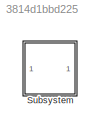
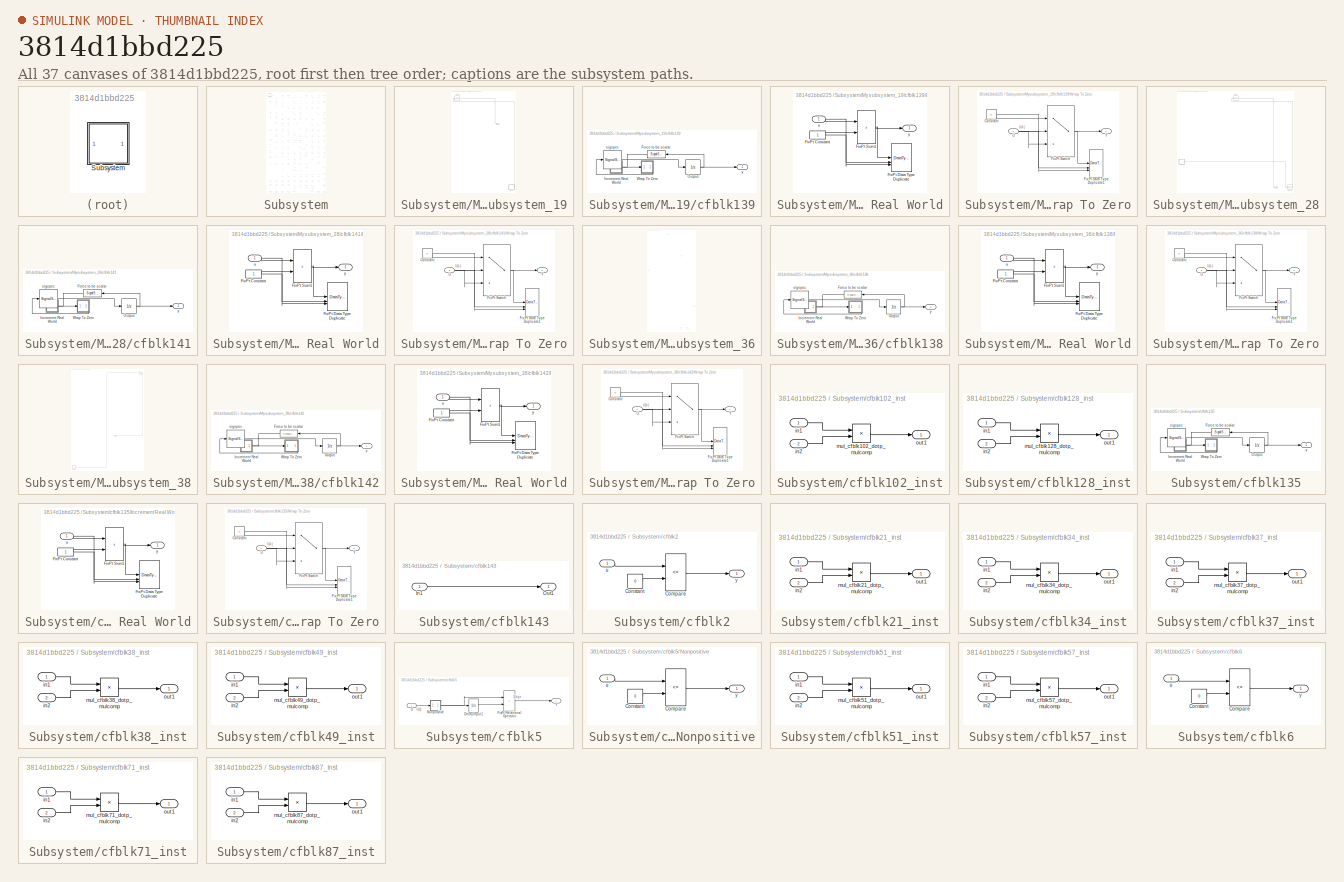
[diagram: thumbnail index - all 37 canvases of the model, root first then tree order]
MODEL slx_3814d1bbd225
KIND model
CONFIG AbsTol = auto
CONFIG EnableMultiTasking = off
CONFIG FixedStep = auto
CONFIG MaxStep = auto
CONFIG MinStep = auto
CONFIG RelTol = 1e-3
CONFIG SampleTimeConstraint = Unconstrained
CONFIG SolverName = VariableStepAuto
CONFIG StartTime = 0.0
CONFIG StopTime = 10.0
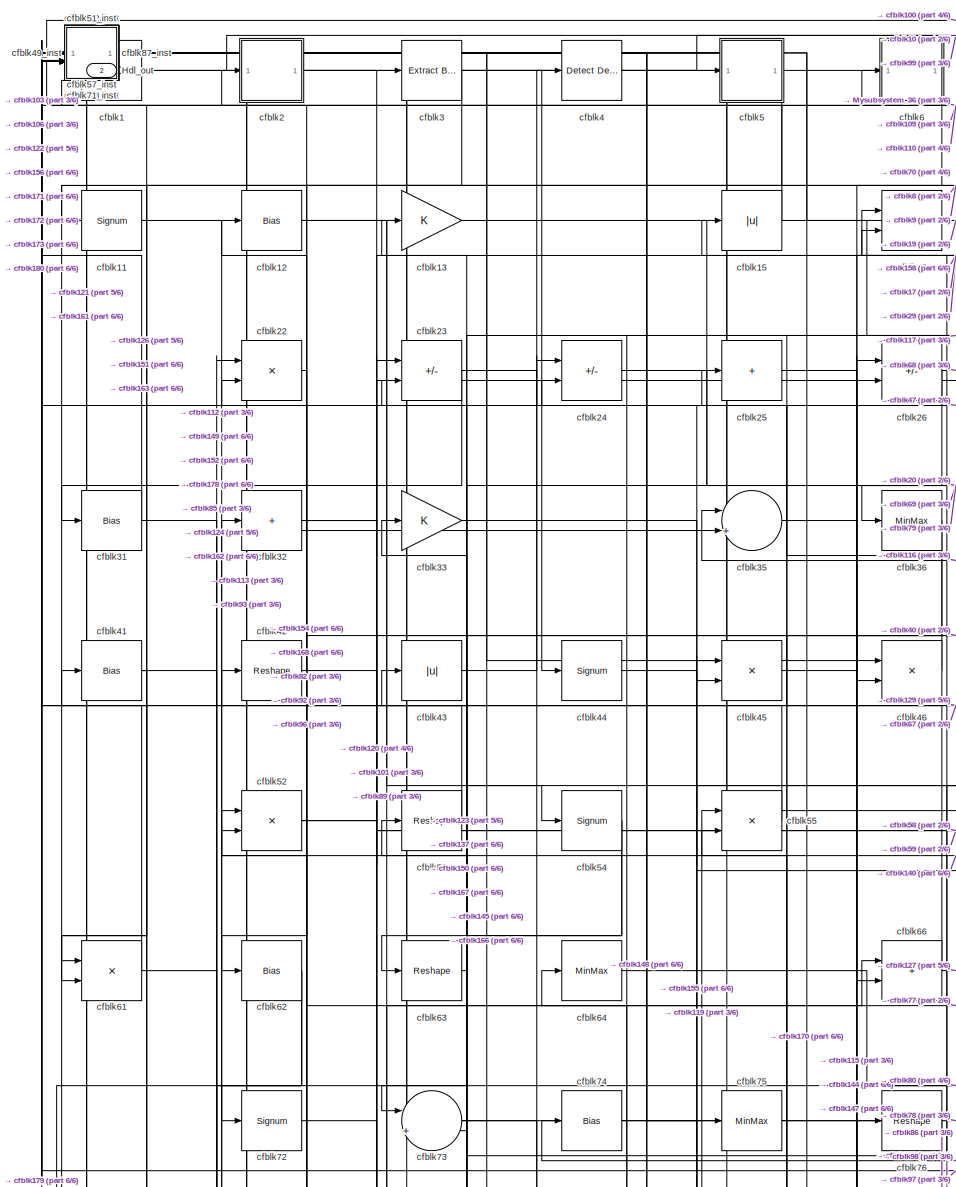
[diagram: Subsystem - part 1/6, top left region]
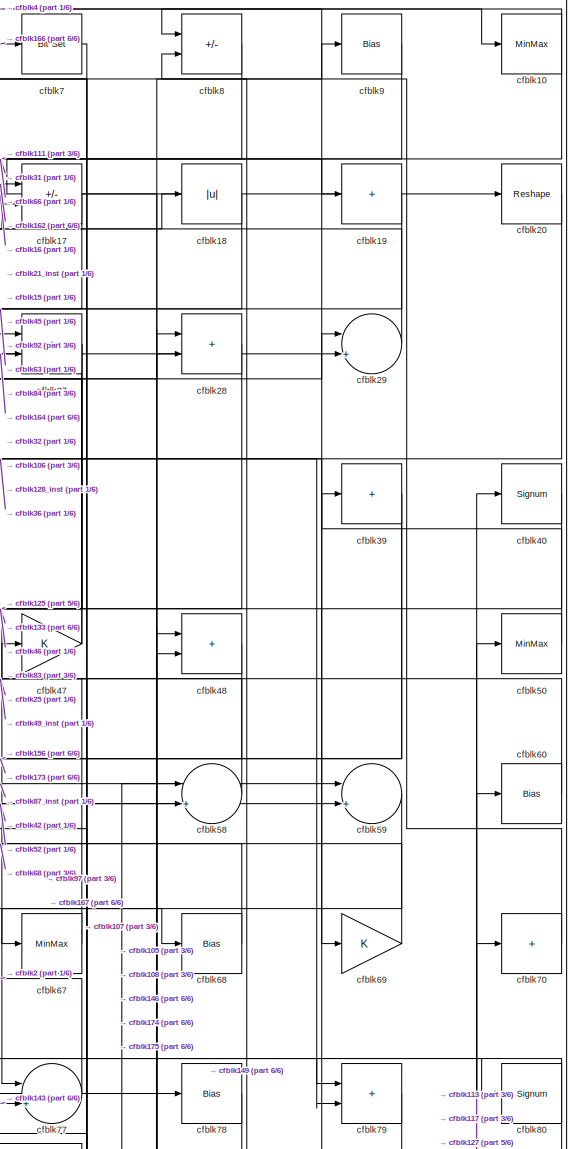
[diagram: Subsystem - part 2/6, top right region]
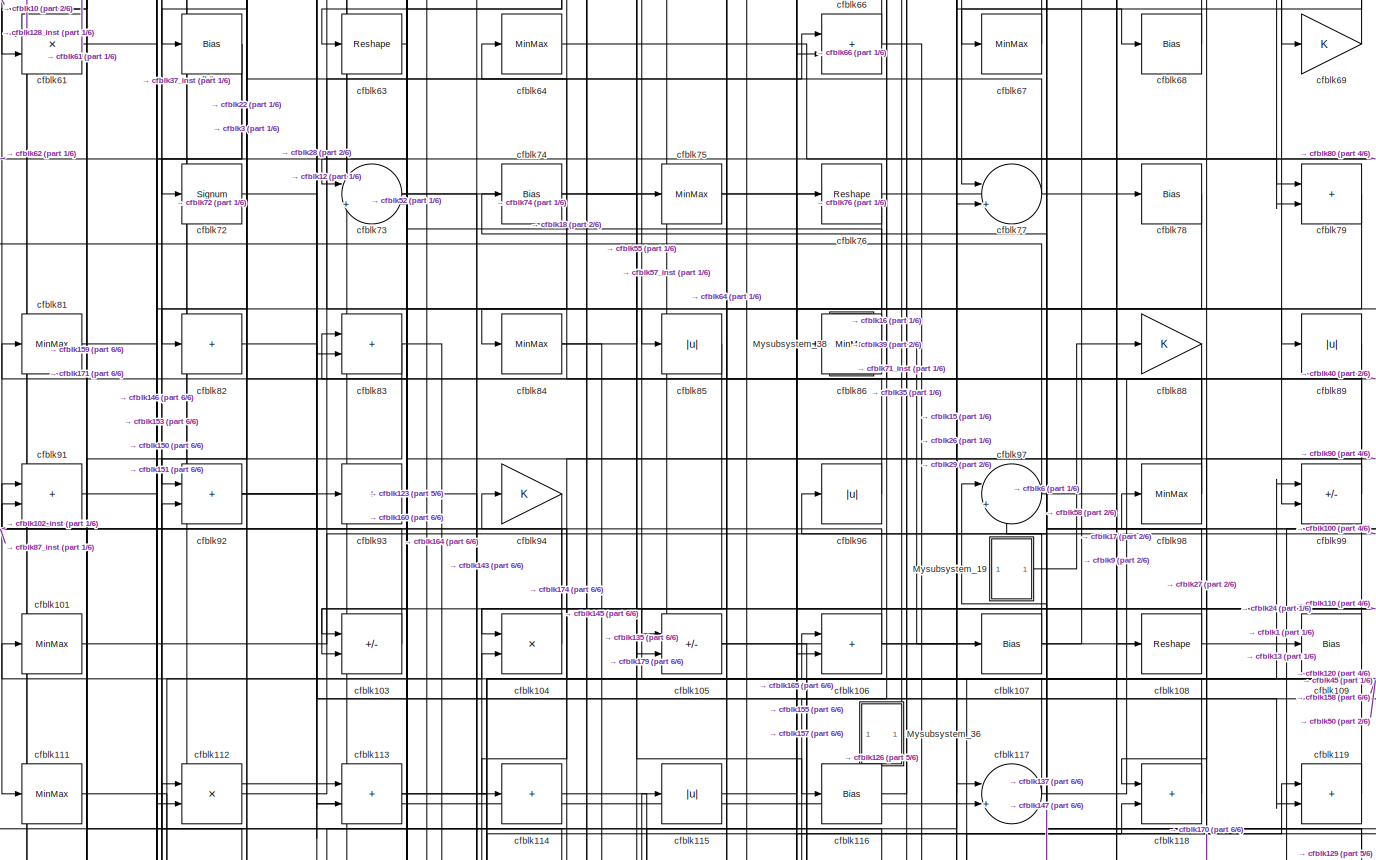
[diagram: Subsystem - part 3/6, full width, middle band]
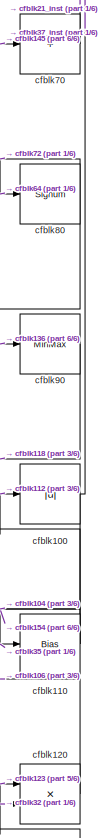
[diagram: Subsystem - part 4/6, middle right region]
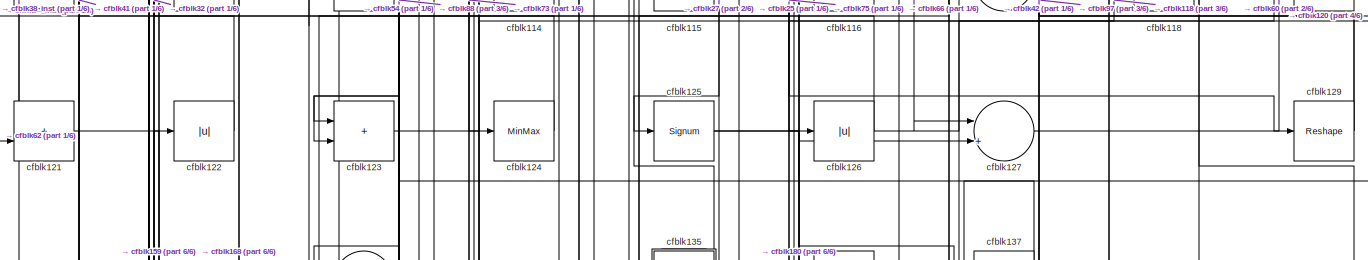
[diagram: Subsystem - part 5/6, full width, bottom band]
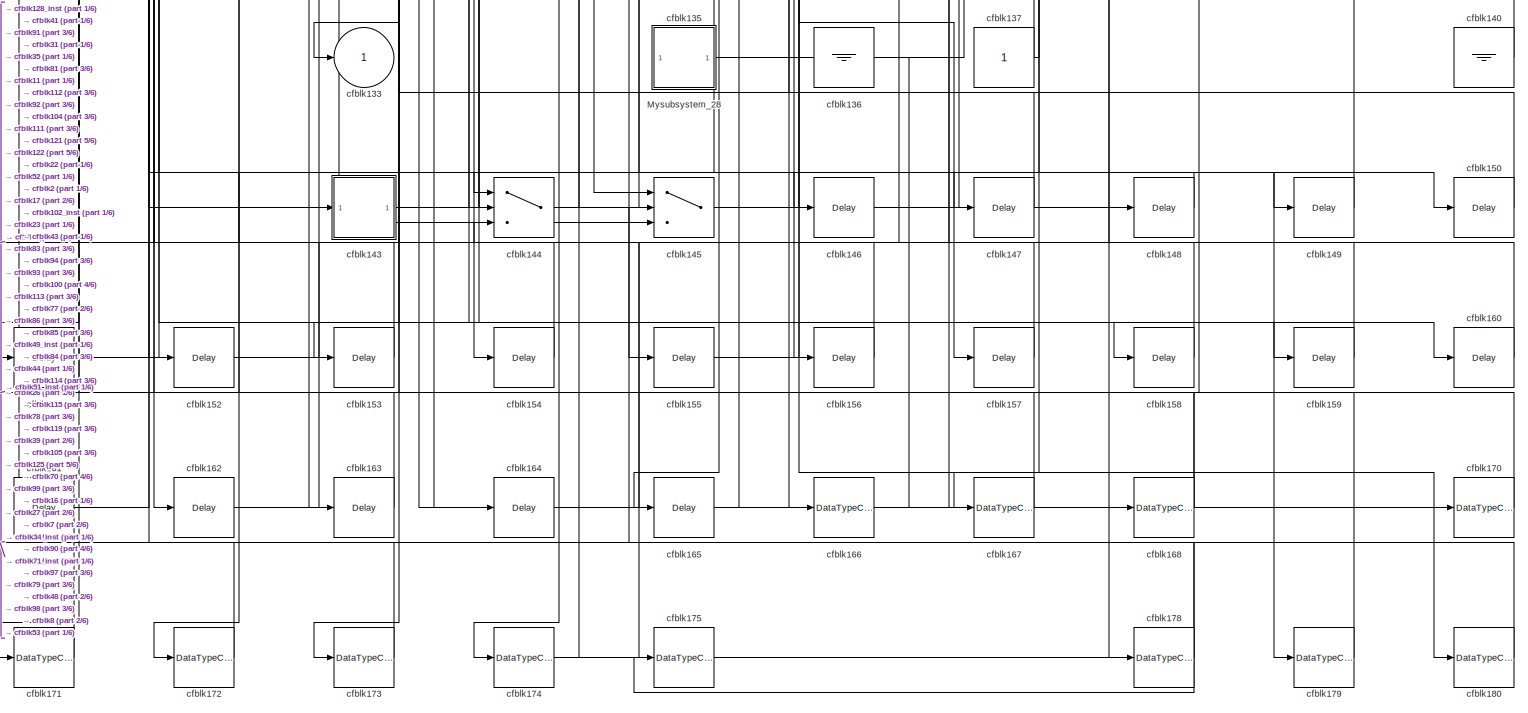
[diagram: Subsystem - part 6/6, full width, bottom band]
BLOCK [SubSystem] Subsystem
BLOCK [Outport] Subsystem/Hdl_out
  OutDataTypeStr = uint8
  Port = 2
  SampleTime = 1
BLOCK [SubSystem] Subsystem/Mysubsystem_19
BLOCK [Outport] Subsystem/Mysubsystem_19/Out1
  SampleTime = 1
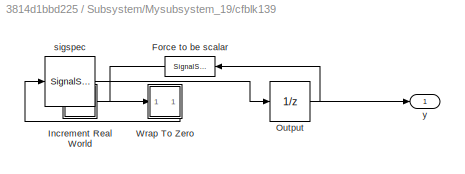
BLOCK [SubSystem] Subsystem/Mysubsystem_19/cfblk139
BLOCK [SignalSpecification] Subsystem/Mysubsystem_19/cfblk139/Force to be scalar
  Dimensions = 1
  DisableCoverage = on
BLOCK [SubSystem] Subsystem/Mysubsystem_19/cfblk139/Increment Real World
BLOCK [Constant] Subsystem/Mysubsystem_19/cfblk139/Increment Real World/FixPt Constant
  DisableCoverage = on
  OutDataTypeStr = Inherit: Inherit via back propagation
  SampleTime = -1
BLOCK [DataTypeDuplicate] Subsystem/Mysubsystem_19/cfblk139/Increment Real World/FixPt Data Type Duplicate
  DisableCoverage = on
  NumInputPorts = 3
BLOCK [Sum] Subsystem/Mysubsystem_19/cfblk139/Increment Real World/FixPt Sum1
  IconShape = rectangular
  InputSameDT = on
  LockScale = on
  OutDataTypeStr = Inherit: Inherit via back propagation
BLOCK [Inport] Subsystem/Mysubsystem_19/cfblk139/Increment Real World/u
  OutDataTypeStr = uint16
  SampleTime = 1
BLOCK [Outport] Subsystem/Mysubsystem_19/cfblk139/Increment Real World/y
  SampleTime = 1
BLOCK [UnitDelay] Subsystem/Mysubsystem_19/cfblk139/Output
  HasFrameUpgradeWarning = on
  InitialCondition = 0.0
  SampleTime = tsamp
BLOCK [SubSystem] Subsystem/Mysubsystem_19/cfblk139/Wrap To Zero
BLOCK [Constant] Subsystem/Mysubsystem_19/cfblk139/Wrap To Zero/Constant
  DisableCoverage = on
  OutDataTypeStr = Inherit: Inherit via back propagation
  SampleTime = -1
  Value = 0
BLOCK [DataTypeDuplicate] Subsystem/Mysubsystem_19/cfblk139/Wrap To Zero/FixPt Data Type Duplicate1
  DisableCoverage = on
  NumInputPorts = 3
BLOCK [Switch] Subsystem/Mysubsystem_19/cfblk139/Wrap To Zero/FixPt Switch
  Criteria = u2 > Threshold
  InputSameDT = off
  OutDataTypeStr = Inherit: Inherit via back propagation
  SaturateOnIntegerOverflow = off
  Threshold = Threshold
  ZeroCross = off
BLOCK [Inport] Subsystem/Mysubsystem_19/cfblk139/Wrap To Zero/U
  OutDataTypeStr = uint16
  SampleTime = 1
BLOCK [Outport] Subsystem/Mysubsystem_19/cfblk139/Wrap To Zero/Y
  SampleTime = 1
BLOCK [SignalSpecification] Subsystem/Mysubsystem_19/cfblk139/sigspec
  Dimensions = 1
  OutDataTypeStr = uint16
BLOCK [Outport] Subsystem/Mysubsystem_19/cfblk139/y
  SampleTime = 1
BLOCK [Signum] Subsystem/Mysubsystem_19/cfblk65
BLOCK [SubSystem] Subsystem/Mysubsystem_28
BLOCK [Outport] Subsystem/Mysubsystem_28/Out1
  SampleTime = 1
BLOCK [SubSystem] Subsystem/Mysubsystem_28/cfblk141
BLOCK [SignalSpecification] Subsystem/Mysubsystem_28/cfblk141/Force to be scalar
  Dimensions = 1
  DisableCoverage = on
BLOCK [SubSystem] Subsystem/Mysubsystem_28/cfblk141/Increment Real World
BLOCK [Constant] Subsystem/Mysubsystem_28/cfblk141/Increment Real World/FixPt Constant
  DisableCoverage = on
  OutDataTypeStr = Inherit: Inherit via back propagation
  SampleTime = -1
BLOCK [DataTypeDuplicate] Subsystem/Mysubsystem_28/cfblk141/Increment Real World/FixPt Data Type Duplicate
  DisableCoverage = on
  NumInputPorts = 3
BLOCK [Sum] Subsystem/Mysubsystem_28/cfblk141/Increment Real World/FixPt Sum1
  IconShape = rectangular
  InputSameDT = on
  LockScale = on
  OutDataTypeStr = Inherit: Inherit via back propagation
BLOCK [Inport] Subsystem/Mysubsystem_28/cfblk141/Increment Real World/u
  OutDataTypeStr = uint16
  SampleTime = 1
BLOCK [Outport] Subsystem/Mysubsystem_28/cfblk141/Increment Real World/y
  SampleTime = 1
BLOCK [UnitDelay] Subsystem/Mysubsystem_28/cfblk141/Output
  HasFrameUpgradeWarning = on
  InitialCondition = 0.0
  SampleTime = tsamp
BLOCK [SubSystem] Subsystem/Mysubsystem_28/cfblk141/Wrap To Zero
BLOCK [Constant] Subsystem/Mysubsystem_28/cfblk141/Wrap To Zero/Constant
  DisableCoverage = on
  OutDataTypeStr = Inherit: Inherit via back propagation
  SampleTime = -1
  Value = 0
BLOCK [DataTypeDuplicate] Subsystem/Mysubsystem_28/cfblk141/Wrap To Zero/FixPt Data Type Duplicate1
  DisableCoverage = on
  NumInputPorts = 3
BLOCK [Switch] Subsystem/Mysubsystem_28/cfblk141/Wrap To Zero/FixPt Switch
  Criteria = u2 > Threshold
  InputSameDT = off
  OutDataTypeStr = Inherit: Inherit via back propagation
  SaturateOnIntegerOverflow = off
  Threshold = Threshold
  ZeroCross = off
BLOCK [Inport] Subsystem/Mysubsystem_28/cfblk141/Wrap To Zero/U
  OutDataTypeStr = uint16
  SampleTime = 1
BLOCK [Outport] Subsystem/Mysubsystem_28/cfblk141/Wrap To Zero/Y
  SampleTime = 1
BLOCK [SignalSpecification] Subsystem/Mysubsystem_28/cfblk141/sigspec
  Dimensions = 1
  OutDataTypeStr = uint16
BLOCK [Outport] Subsystem/Mysubsystem_28/cfblk141/y
  SampleTime = 1
BLOCK [DataTypeConversion] Subsystem/Mysubsystem_28/cfblk169
  OutDataTypeStr = uint8
  RndMeth = Floor
  SaturateOnIntegerOverflow = off
BLOCK [Signum] Subsystem/Mysubsystem_28/cfblk95
BLOCK [SubSystem] Subsystem/Mysubsystem_36
BLOCK [Outport] Subsystem/Mysubsystem_36/Out1
  SampleTime = 1
BLOCK [SubSystem] Subsystem/Mysubsystem_36/cfblk138
BLOCK [SignalSpecification] Subsystem/Mysubsystem_36/cfblk138/Force to be scalar
  Dimensions = 1
  DisableCoverage = on
BLOCK [SubSystem] Subsystem/Mysubsystem_36/cfblk138/Increment Real World
BLOCK [Constant] Subsystem/Mysubsystem_36/cfblk138/Increment Real World/FixPt Constant
  DisableCoverage = on
  OutDataTypeStr = Inherit: Inherit via back propagation
  SampleTime = -1
BLOCK [DataTypeDuplicate] Subsystem/Mysubsystem_36/cfblk138/Increment Real World/FixPt Data Type Duplicate
  DisableCoverage = on
  NumInputPorts = 3
BLOCK [Sum] Subsystem/Mysubsystem_36/cfblk138/Increment Real World/FixPt Sum1
  IconShape = rectangular
  InputSameDT = on
  LockScale = on
  OutDataTypeStr = Inherit: Inherit via back propagation
BLOCK [Inport] Subsystem/Mysubsystem_36/cfblk138/Increment Real World/u
  OutDataTypeStr = uint8
  SampleTime = 1
BLOCK [Outport] Subsystem/Mysubsystem_36/cfblk138/Increment Real World/y
  SampleTime = 1
BLOCK [UnitDelay] Subsystem/Mysubsystem_36/cfblk138/Output
  HasFrameUpgradeWarning = on
  InitialCondition = 0.0
  SampleTime = tsamp
BLOCK [SubSystem] Subsystem/Mysubsystem_36/cfblk138/Wrap To Zero
BLOCK [Constant] Subsystem/Mysubsystem_36/cfblk138/Wrap To Zero/Constant
  DisableCoverage = on
  OutDataTypeStr = Inherit: Inherit via back propagation
  SampleTime = -1
  Value = 0
BLOCK [DataTypeDuplicate] Subsystem/Mysubsystem_36/cfblk138/Wrap To Zero/FixPt Data Type Duplicate1
  DisableCoverage = on
  NumInputPorts = 3
BLOCK [Switch] Subsystem/Mysubsystem_36/cfblk138/Wrap To Zero/FixPt Switch
  Criteria = u2 > Threshold
  InputSameDT = off
  OutDataTypeStr = Inherit: Inherit via back propagation
  SaturateOnIntegerOverflow = off
  Threshold = Threshold
  ZeroCross = off
BLOCK [Inport] Subsystem/Mysubsystem_36/cfblk138/Wrap To Zero/U
  OutDataTypeStr = uint8
  SampleTime = 1
BLOCK [Outport] Subsystem/Mysubsystem_36/cfblk138/Wrap To Zero/Y
  SampleTime = 1
BLOCK [SignalSpecification] Subsystem/Mysubsystem_36/cfblk138/sigspec
  Dimensions = 1
  OutDataTypeStr = uint8
BLOCK [Outport] Subsystem/Mysubsystem_36/cfblk138/y
  SampleTime = 1
BLOCK [Gain] Subsystem/Mysubsystem_36/cfblk14
BLOCK [DataTypeConversion] Subsystem/Mysubsystem_36/cfblk176
  OutDataTypeStr = uint8
  RndMeth = Floor
  SaturateOnIntegerOverflow = off
BLOCK [DataTypeConversion] Subsystem/Mysubsystem_36/cfblk177
  OutDataTypeStr = uint8
  RndMeth = Floor
  SaturateOnIntegerOverflow = off
BLOCK [Abs] Subsystem/Mysubsystem_36/cfblk56
  SaturateOnIntegerOverflow = off
BLOCK [SubSystem] Subsystem/Mysubsystem_38
BLOCK [Outport] Subsystem/Mysubsystem_38/Out1
  SampleTime = 1
BLOCK [SubSystem] Subsystem/Mysubsystem_38/cfblk142
BLOCK [SignalSpecification] Subsystem/Mysubsystem_38/cfblk142/Force to be scalar
  Dimensions = 1
  DisableCoverage = on
BLOCK [SubSystem] Subsystem/Mysubsystem_38/cfblk142/Increment Real World
BLOCK [Constant] Subsystem/Mysubsystem_38/cfblk142/Increment Real World/FixPt Constant
  DisableCoverage = on
  OutDataTypeStr = Inherit: Inherit via back propagation
  SampleTime = -1
BLOCK [DataTypeDuplicate] Subsystem/Mysubsystem_38/cfblk142/Increment Real World/FixPt Data Type Duplicate
  DisableCoverage = on
  NumInputPorts = 3
BLOCK [Sum] Subsystem/Mysubsystem_38/cfblk142/Increment Real World/FixPt Sum1
  IconShape = rectangular
  InputSameDT = on
  LockScale = on
  OutDataTypeStr = Inherit: Inherit via back propagation
BLOCK [Inport] Subsystem/Mysubsystem_38/cfblk142/Increment Real World/u
  OutDataTypeStr = uint8
  SampleTime = 1
BLOCK [Outport] Subsystem/Mysubsystem_38/cfblk142/Increment Real World/y
  SampleTime = 1
BLOCK [UnitDelay] Subsystem/Mysubsystem_38/cfblk142/Output
  HasFrameUpgradeWarning = on
  InitialCondition = 0.0
  SampleTime = tsamp
BLOCK [SubSystem] Subsystem/Mysubsystem_38/cfblk142/Wrap To Zero
BLOCK [Constant] Subsystem/Mysubsystem_38/cfblk142/Wrap To Zero/Constant
  DisableCoverage = on
  OutDataTypeStr = Inherit: Inherit via back propagation
  SampleTime = -1
  Value = 0
BLOCK [DataTypeDuplicate] Subsystem/Mysubsystem_38/cfblk142/Wrap To Zero/FixPt Data Type Duplicate1
  DisableCoverage = on
  NumInputPorts = 3
BLOCK [Switch] Subsystem/Mysubsystem_38/cfblk142/Wrap To Zero/FixPt Switch
  Criteria = u2 > Threshold
  InputSameDT = off
  OutDataTypeStr = Inherit: Inherit via back propagation
  SaturateOnIntegerOverflow = off
  Threshold = Threshold
  ZeroCross = off
BLOCK [Inport] Subsystem/Mysubsystem_38/cfblk142/Wrap To Zero/U
  OutDataTypeStr = uint8
  SampleTime = 1
BLOCK [Outport] Subsystem/Mysubsystem_38/cfblk142/Wrap To Zero/Y
  SampleTime = 1
BLOCK [SignalSpecification] Subsystem/Mysubsystem_38/cfblk142/sigspec
  Dimensions = 1
  OutDataTypeStr = uint8
BLOCK [Outport] Subsystem/Mysubsystem_38/cfblk142/y
  SampleTime = 1
BLOCK [Gain] Subsystem/Mysubsystem_38/cfblk30
BLOCK [Logic] Subsystem/cfblk1
  AllPortsSameDT = off
  OutDataTypeStr = boolean
BLOCK [MinMax] Subsystem/cfblk10
  OutDataTypeStr = uint8
BLOCK [Abs] Subsystem/cfblk100
  OutDataTypeStr = uint8
  SaturateOnIntegerOverflow = off
BLOCK [MinMax] Subsystem/cfblk101
  OutDataTypeStr = uint8
BLOCK [SubSystem] Subsystem/cfblk102_inst
BLOCK [Inport] Subsystem/cfblk102_inst/in1
  OutDataTypeStr = uint8
  SampleTime = 1
BLOCK [Inport] Subsystem/cfblk102_inst/in2
  OutDataTypeStr = uint8
  Port = 2
  SampleTime = 1
BLOCK [Product] Subsystem/cfblk102_inst/mul_cfblk102_dotp_mulcomp
  Inputs = **
  OutDataTypeStr = uint8
  SampleTime = 1
BLOCK [Outport] Subsystem/cfblk102_inst/out1
  OutDataTypeStr = uint8
  SampleTime = 1
BLOCK [Sum] Subsystem/cfblk103
  IconShape = rectangular
  Inputs = +-
  OutDataTypeStr = uint8
BLOCK [Product] Subsystem/cfblk104
  Inputs = */
  OutDataTypeStr = uint8
  RndMeth = Zero
  SaturateOnIntegerOverflow = on
BLOCK [Sum] Subsystem/cfblk105
  IconShape = rectangular
  Inputs = +-
  OutDataTypeStr = uint8
BLOCK [Sum] Subsystem/cfblk106
  IconShape = rectangular
  OutDataTypeStr = uint8
BLOCK [Bias] Subsystem/cfblk107
  Bias = 0.0
  SaturateOnIntegerOverflow = off
BLOCK [Reshape] Subsystem/cfblk108
BLOCK [Bias] Subsystem/cfblk109
  Bias = 0.0
  SaturateOnIntegerOverflow = off
BLOCK [Signum] Subsystem/cfblk11
BLOCK [Bias] Subsystem/cfblk110
  Bias = 0.0
  SaturateOnIntegerOverflow = off
BLOCK [MinMax] Subsystem/cfblk111
  OutDataTypeStr = uint8
BLOCK [Product] Subsystem/cfblk112
  Inputs = */
  OutDataTypeStr = uint8
  RndMeth = Zero
  SaturateOnIntegerOverflow = on
BLOCK [Sum] Subsystem/cfblk113
  IconShape = rectangular
  OutDataTypeStr = uint8
BLOCK [Sum] Subsystem/cfblk114
  IconShape = rectangular
  Inputs = +
  OutDataTypeStr = uint8
BLOCK [Abs] Subsystem/cfblk115
  OutDataTypeStr = uint8
  SaturateOnIntegerOverflow = off
BLOCK [Bias] Subsystem/cfblk116
  Bias = 0.0
  SaturateOnIntegerOverflow = off
BLOCK [Sum] Subsystem/cfblk117
  Inputs = |++
  OutDataTypeStr = uint8
BLOCK [Sum] Subsystem/cfblk118
  IconShape = rectangular
  OutDataTypeStr = uint8
BLOCK [Sum] Subsystem/cfblk119
  IconShape = rectangular
  OutDataTypeStr = uint8
BLOCK [Bias] Subsystem/cfblk12
  Bias = 0.0
  SaturateOnIntegerOverflow = off
BLOCK [Product] Subsystem/cfblk120
  Inputs = */
  OutDataTypeStr = uint8
  RndMeth = Zero
  SaturateOnIntegerOverflow = on
BLOCK [Sum] Subsystem/cfblk121
  IconShape = rectangular
  OutDataTypeStr = uint8
BLOCK [Abs] Subsystem/cfblk122
  OutDataTypeStr = uint8
  SaturateOnIntegerOverflow = off
BLOCK [Sum] Subsystem/cfblk123
  IconShape = rectangular
  OutDataTypeStr = uint8
BLOCK [MinMax] Subsystem/cfblk124
  OutDataTypeStr = uint8
BLOCK [Signum] Subsystem/cfblk125
BLOCK [Abs] Subsystem/cfblk126
  OutDataTypeStr = uint8
  SaturateOnIntegerOverflow = off
BLOCK [Sum] Subsystem/cfblk127
  Inputs = |++
  OutDataTypeStr = uint8
BLOCK [SubSystem] Subsystem/cfblk128_inst
BLOCK [Inport] Subsystem/cfblk128_inst/in1
  OutDataTypeStr = uint8
  SampleTime = 1
BLOCK [Inport] Subsystem/cfblk128_inst/in2
  OutDataTypeStr = uint8
  Port = 2
  SampleTime = 1
BLOCK [Product] Subsystem/cfblk128_inst/mul_cfblk128_dotp_mulcomp
  Inputs = **
  OutDataTypeStr = uint8
  SampleTime = 1
BLOCK [Outport] Subsystem/cfblk128_inst/out1
  OutDataTypeStr = uint8
  SampleTime = 1
BLOCK [Reshape] Subsystem/cfblk129
BLOCK [Gain] Subsystem/cfblk13
  OutDataTypeStr = uint8
BLOCK [Outport] Subsystem/cfblk133
  OutDataTypeStr = uint8
  SampleTime = 1
  VectorParamsAs1DForOutWhenUnconnected = off
BLOCK [SubSystem] Subsystem/cfblk135
BLOCK [SignalSpecification] Subsystem/cfblk135/Force to be scalar
  Dimensions = 1
  DisableCoverage = on
BLOCK [SubSystem] Subsystem/cfblk135/Increment Real World
BLOCK [Constant] Subsystem/cfblk135/Increment Real World/FixPt Constant
  DisableCoverage = on
  OutDataTypeStr = Inherit: Inherit via back propagation
  SampleTime = -1
BLOCK [DataTypeDuplicate] Subsystem/cfblk135/Increment Real World/FixPt Data Type Duplicate
  DisableCoverage = on
  NumInputPorts = 3
BLOCK [Sum] Subsystem/cfblk135/Increment Real World/FixPt Sum1
  IconShape = rectangular
  InputSameDT = on
  LockScale = on
  OutDataTypeStr = Inherit: Inherit via back propagation
BLOCK [Inport] Subsystem/cfblk135/Increment Real World/u
  OutDataTypeStr = uint16
  SampleTime = 1
BLOCK [Outport] Subsystem/cfblk135/Increment Real World/y
  SampleTime = 1
BLOCK [UnitDelay] Subsystem/cfblk135/Output
  HasFrameUpgradeWarning = on
  InitialCondition = 0.0
  SampleTime = tsamp
BLOCK [SubSystem] Subsystem/cfblk135/Wrap To Zero
BLOCK [Constant] Subsystem/cfblk135/Wrap To Zero/Constant
  DisableCoverage = on
  OutDataTypeStr = Inherit: Inherit via back propagation
  SampleTime = -1
  Value = 0
BLOCK [DataTypeDuplicate] Subsystem/cfblk135/Wrap To Zero/FixPt Data Type Duplicate1
  DisableCoverage = on
  NumInputPorts = 3
BLOCK [Switch] Subsystem/cfblk135/Wrap To Zero/FixPt Switch
  Criteria = u2 > Threshold
  InputSameDT = off
  OutDataTypeStr = Inherit: Inherit via back propagation
  SaturateOnIntegerOverflow = off
  Threshold = Threshold
  ZeroCross = off
BLOCK [Inport] Subsystem/cfblk135/Wrap To Zero/U
  OutDataTypeStr = uint16
  SampleTime = 1
BLOCK [Outport] Subsystem/cfblk135/Wrap To Zero/Y
  SampleTime = 1
BLOCK [SignalSpecification] Subsystem/cfblk135/sigspec
  Dimensions = 1
  OutDataTypeStr = uint16
BLOCK [Outport] Subsystem/cfblk135/y
  SampleTime = 1
BLOCK [Ground] Subsystem/cfblk136
BLOCK [Constant] Subsystem/cfblk137
  OutDataTypeStr = uint8
  SampleTime = -1
BLOCK [Ground] Subsystem/cfblk140
BLOCK [SubSystem] Subsystem/cfblk143
BLOCK [Inport] Subsystem/cfblk143/In1
  OutDataTypeStr = uint8
  PortDimensions = 1
  SampleTime = 1
BLOCK [Outport] Subsystem/cfblk143/Out1
  SampleTime = 1
BLOCK [Switch] Subsystem/cfblk144
  InputSameDT = off
  OutDataTypeStr = uint8
  SaturateOnIntegerOverflow = off
BLOCK [Switch] Subsystem/cfblk145
  InputSameDT = off
  OutDataTypeStr = uint8
  SaturateOnIntegerOverflow = off
BLOCK [Delay] Subsystem/cfblk146
  InputPortMap = u0
  SampleTime = 1
BLOCK [Delay] Subsystem/cfblk147
  InputPortMap = u0
  SampleTime = 1
BLOCK [Delay] Subsystem/cfblk148
  InputPortMap = u0
  SampleTime = 1
BLOCK [Delay] Subsystem/cfblk149
  InputPortMap = u0
  SampleTime = 1
BLOCK [Abs] Subsystem/cfblk15
  OutDataTypeStr = uint8
  SaturateOnIntegerOverflow = off
BLOCK [Delay] Subsystem/cfblk150
  InputPortMap = u0
  SampleTime = 1
BLOCK [Delay] Subsystem/cfblk151
  InputPortMap = u0
  SampleTime = 1
BLOCK [Delay] Subsystem/cfblk152
  InputPortMap = u0
  SampleTime = 1
BLOCK [Delay] Subsystem/cfblk153
  InputPortMap = u0
  SampleTime = 1
BLOCK [Delay] Subsystem/cfblk154
  InputPortMap = u0
  SampleTime = 1
BLOCK [Delay] Subsystem/cfblk155
  InputPortMap = u0
  SampleTime = 1
BLOCK [Delay] Subsystem/cfblk156
  InputPortMap = u0
  SampleTime = 1
BLOCK [Delay] Subsystem/cfblk157
  InputPortMap = u0
  SampleTime = 1
BLOCK [Delay] Subsystem/cfblk158
  InputPortMap = u0
  SampleTime = 1
BLOCK [Delay] Subsystem/cfblk159
  InputPortMap = u0
  SampleTime = 1
BLOCK [Product] Subsystem/cfblk16
  Inputs = */
  OutDataTypeStr = uint8
  RndMeth = Zero
  SaturateOnIntegerOverflow = on
BLOCK [Delay] Subsystem/cfblk160
  InputPortMap = u0
  SampleTime = 1
BLOCK [Delay] Subsystem/cfblk161
  InputPortMap = u0
  SampleTime = 1
BLOCK [Delay] Subsystem/cfblk162
  InputPortMap = u0
  SampleTime = 1
BLOCK [Delay] Subsystem/cfblk163
  InputPortMap = u0
  SampleTime = 1
BLOCK [Delay] Subsystem/cfblk164
  InputPortMap = u0
  SampleTime = 1
BLOCK [Delay] Subsystem/cfblk165
  InputPortMap = u0
  SampleTime = 1
BLOCK [DataTypeConversion] Subsystem/cfblk166
  OutDataTypeStr = uint8
  RndMeth = Floor
  SaturateOnIntegerOverflow = off
BLOCK [DataTypeConversion] Subsystem/cfblk167
  OutDataTypeStr = uint8
  RndMeth = Floor
  SaturateOnIntegerOverflow = off
BLOCK [DataTypeConversion] Subsystem/cfblk168
  OutDataTypeStr = uint8
  RndMeth = Floor
  SaturateOnIntegerOverflow = off
BLOCK [Sum] Subsystem/cfblk17
  IconShape = rectangular
  Inputs = +-
  OutDataTypeStr = uint8
BLOCK [DataTypeConversion] Subsystem/cfblk170
  OutDataTypeStr = uint8
  RndMeth = Floor
  SaturateOnIntegerOverflow = off
BLOCK [DataTypeConversion] Subsystem/cfblk171
  OutDataTypeStr = uint8
  RndMeth = Floor
  SaturateOnIntegerOverflow = off
BLOCK [DataTypeConversion] Subsystem/cfblk172
  OutDataTypeStr = uint8
  RndMeth = Floor
  SaturateOnIntegerOverflow = off
BLOCK [DataTypeConversion] Subsystem/cfblk173
  OutDataTypeStr = uint8
  RndMeth = Floor
  SaturateOnIntegerOverflow = off
BLOCK [DataTypeConversion] Subsystem/cfblk174
  OutDataTypeStr = uint8
  RndMeth = Floor
  SaturateOnIntegerOverflow = off
BLOCK [DataTypeConversion] Subsystem/cfblk175
  OutDataTypeStr = uint8
  RndMeth = Floor
  SaturateOnIntegerOverflow = off
BLOCK [DataTypeConversion] Subsystem/cfblk178
  OutDataTypeStr = uint8
  RndMeth = Floor
  SaturateOnIntegerOverflow = off
BLOCK [DataTypeConversion] Subsystem/cfblk179
  OutDataTypeStr = uint8
  RndMeth = Floor
  SaturateOnIntegerOverflow = off
BLOCK [Abs] Subsystem/cfblk18
  OutDataTypeStr = uint8
  SaturateOnIntegerOverflow = off
BLOCK [DataTypeConversion] Subsystem/cfblk180
  OutDataTypeStr = uint8
  RndMeth = Floor
  SaturateOnIntegerOverflow = off
BLOCK [Sum] Subsystem/cfblk19
  IconShape = rectangular
  Inputs = +
  OutDataTypeStr = uint8
BLOCK [SubSystem] Subsystem/cfblk2
BLOCK [RelationalOperator] Subsystem/cfblk2/Compare
  Operator = <=
  OutDataTypeStr = fixdt(0, 8)
BLOCK [Constant] Subsystem/cfblk2/Constant
  DisableCoverage = on
  OutDataTypeStr = Inherit: Inherit via back propagation
  PreserveConstantTs = on
  SampleTime = -1
  Value = 0
BLOCK [Inport] Subsystem/cfblk2/u
  OutDataTypeStr = uint8
  SampleTime = 1
BLOCK [Outport] Subsystem/cfblk2/y
  SampleTime = 1
BLOCK [Reshape] Subsystem/cfblk20
BLOCK [SubSystem] Subsystem/cfblk21_inst
BLOCK [Inport] Subsystem/cfblk21_inst/in1
  OutDataTypeStr = uint8
  SampleTime = 1
BLOCK [Inport] Subsystem/cfblk21_inst/in2
  OutDataTypeStr = uint8
  Port = 2
  SampleTime = 1
BLOCK [Product] Subsystem/cfblk21_inst/mul_cfblk21_dotp_mulcomp
  Inputs = **
  OutDataTypeStr = uint8
  SampleTime = 1
BLOCK [Outport] Subsystem/cfblk21_inst/out1
  OutDataTypeStr = uint8
  SampleTime = 1
BLOCK [Product] Subsystem/cfblk22
  Inputs = */
  OutDataTypeStr = uint8
  RndMeth = Zero
  SaturateOnIntegerOverflow = on
BLOCK [Sum] Subsystem/cfblk23
  IconShape = rectangular
  Inputs = +-
  OutDataTypeStr = uint8
BLOCK [Sum] Subsystem/cfblk24
  IconShape = rectangular
  Inputs = +-
  OutDataTypeStr = uint8
BLOCK [Sum] Subsystem/cfblk25
  IconShape = rectangular
  Inputs = +
  OutDataTypeStr = uint8
BLOCK [Sum] Subsystem/cfblk26
  IconShape = rectangular
  Inputs = +-
  OutDataTypeStr = uint8
BLOCK [Sum] Subsystem/cfblk27
  IconShape = rectangular
  OutDataTypeStr = uint8
BLOCK [Sum] Subsystem/cfblk28
  IconShape = rectangular
  OutDataTypeStr = uint8
BLOCK [Sum] Subsystem/cfblk29
  Inputs = |++
  OutDataTypeStr = uint8
BLOCK [Reference] Subsystem/cfblk3  REF=simulink/Logic and Bit
Operations/Extract Bits
  LibrarySourceBlock = hdlsllib/Logic and Bit\nOperations/Extract Bits
  SourceBlock = simulink/Logic and Bit\nOperations/Extract Bits
  SourceType = Extract Bits
BLOCK [Bias] Subsystem/cfblk31
  Bias = 0.0
  SaturateOnIntegerOverflow = off
BLOCK [Sum] Subsystem/cfblk32
  IconShape = rectangular
  Inputs = +
  OutDataTypeStr = uint8
BLOCK [Gain] Subsystem/cfblk33
  OutDataTypeStr = uint8
BLOCK [SubSystem] Subsystem/cfblk34_inst
BLOCK [Inport] Subsystem/cfblk34_inst/in1
  OutDataTypeStr = uint8
  SampleTime = 1
BLOCK [Inport] Subsystem/cfblk34_inst/in2
  OutDataTypeStr = uint8
  Port = 2
  SampleTime = 1
BLOCK [Product] Subsystem/cfblk34_inst/mul_cfblk34_dotp_mulcomp
  Inputs = **
  OutDataTypeStr = uint8
  SampleTime = 1
BLOCK [Outport] Subsystem/cfblk34_inst/out1
  OutDataTypeStr = uint8
  SampleTime = 1
BLOCK [Sum] Subsystem/cfblk35
  Inputs = |++
  OutDataTypeStr = uint8
BLOCK [MinMax] Subsystem/cfblk36
  OutDataTypeStr = uint8
BLOCK [SubSystem] Subsystem/cfblk37_inst
BLOCK [Inport] Subsystem/cfblk37_inst/in1
  OutDataTypeStr = uint8
  SampleTime = 1
BLOCK [Inport] Subsystem/cfblk37_inst/in2
  OutDataTypeStr = uint8
  Port = 2
  SampleTime = 1
BLOCK [Product] Subsystem/cfblk37_inst/mul_cfblk37_dotp_mulcomp
  Inputs = **
  OutDataTypeStr = uint8
  SampleTime = 1
BLOCK [Outport] Subsystem/cfblk37_inst/out1
  OutDataTypeStr = uint8
  SampleTime = 1
BLOCK [SubSystem] Subsystem/cfblk38_inst
BLOCK [Inport] Subsystem/cfblk38_inst/in1
  OutDataTypeStr = uint8
  SampleTime = 1
BLOCK [Inport] Subsystem/cfblk38_inst/in2
  OutDataTypeStr = uint8
  Port = 2
  SampleTime = 1
BLOCK [Product] Subsystem/cfblk38_inst/mul_cfblk38_dotp_mulcomp
  Inputs = **
  OutDataTypeStr = uint8
  SampleTime = 1
BLOCK [Outport] Subsystem/cfblk38_inst/out1
  OutDataTypeStr = uint8
  SampleTime = 1
BLOCK [Sum] Subsystem/cfblk39
  IconShape = rectangular
  Inputs = +
  OutDataTypeStr = uint8
BLOCK [Reference] Subsystem/cfblk4  REF=simulink/Logic and Bit
Operations/Detect
Decrease
  LibrarySourceBlock = hdlsllib/Logic and Bit\nOperations/Detect\nDecrease
  SourceBlock = simulink/Logic and Bit\nOperations/Detect\nDecrease
  SourceType = Detect Decrease
BLOCK [Signum] Subsystem/cfblk40
BLOCK [Bias] Subsystem/cfblk41
  Bias = 0.0
  SaturateOnIntegerOverflow = off
BLOCK [Reshape] Subsystem/cfblk42
BLOCK [Abs] Subsystem/cfblk43
  OutDataTypeStr = uint8
  SaturateOnIntegerOverflow = off
BLOCK [Signum] Subsystem/cfblk44
BLOCK [Product] Subsystem/cfblk45
  Inputs = */
  OutDataTypeStr = uint8
  RndMeth = Zero
  SaturateOnIntegerOverflow = on
BLOCK [Product] Subsystem/cfblk46
  Inputs = */
  OutDataTypeStr = uint8
  RndMeth = Zero
  SaturateOnIntegerOverflow = on
BLOCK [Gain] Subsystem/cfblk47
  OutDataTypeStr = uint8
BLOCK [Sum] Subsystem/cfblk48
  IconShape = rectangular
  OutDataTypeStr = uint8
BLOCK [SubSystem] Subsystem/cfblk49_inst
BLOCK [Inport] Subsystem/cfblk49_inst/in1
  OutDataTypeStr = uint8
  SampleTime = 1
BLOCK [Inport] Subsystem/cfblk49_inst/in2
  OutDataTypeStr = uint8
  Port = 2
  SampleTime = 1
BLOCK [Product] Subsystem/cfblk49_inst/mul_cfblk49_dotp_mulcomp
  Inputs = **
  OutDataTypeStr = uint8
  SampleTime = 1
BLOCK [Outport] Subsystem/cfblk49_inst/out1
  OutDataTypeStr = uint8
  SampleTime = 1
BLOCK [SubSystem] Subsystem/cfblk5
BLOCK [UnitDelay] Subsystem/cfblk5/Delay Input1
  Description = Store in Global RAM
  DisableCoverage = on
  HasFrameUpgradeWarning = on
  InitialCondition = vinit
  SampleTime = -1
BLOCK [RelationalOperator] Subsystem/cfblk5/FixPt Relational Operator
  InputSameDT = off
  Operator = >
  OutDataTypeStr = fixdt(0, 8)
  ZeroCross = off
BLOCK [SubSystem] Subsystem/cfblk5/Nonpositive
BLOCK [RelationalOperator] Subsystem/cfblk5/Nonpositive/Compare
  Operator = <=
  OutDataTypeStr = boolean
  ZeroCross = off
BLOCK [Constant] Subsystem/cfblk5/Nonpositive/Constant
  DisableCoverage = on
  OutDataTypeStr = Inherit: Inherit via back propagation
  PreserveConstantTs = on
  SampleTime = -1
  Value = 0
BLOCK [Inport] Subsystem/cfblk5/Nonpositive/u
  OutDataTypeStr = uint8
  SampleTime = 1
BLOCK [Outport] Subsystem/cfblk5/Nonpositive/y
  SampleTime = 1
BLOCK [Inport] Subsystem/cfblk5/U
  OutDataTypeStr = uint8
  SampleTime = 1
BLOCK [Outport] Subsystem/cfblk5/Y
  SampleTime = 1
BLOCK [MinMax] Subsystem/cfblk50
  OutDataTypeStr = uint8
BLOCK [SubSystem] Subsystem/cfblk51_inst
BLOCK [Inport] Subsystem/cfblk51_inst/in1
  OutDataTypeStr = uint8
  SampleTime = 1
BLOCK [Inport] Subsystem/cfblk51_inst/in2
  OutDataTypeStr = uint8
  Port = 2
  SampleTime = 1
BLOCK [Product] Subsystem/cfblk51_inst/mul_cfblk51_dotp_mulcomp
  Inputs = **
  OutDataTypeStr = uint8
  SampleTime = 1
BLOCK [Outport] Subsystem/cfblk51_inst/out1
  OutDataTypeStr = uint8
  SampleTime = 1
BLOCK [Product] Subsystem/cfblk52
  Inputs = */
  OutDataTypeStr = uint8
  RndMeth = Zero
  SaturateOnIntegerOverflow = on
BLOCK [Reshape] Subsystem/cfblk53
BLOCK [Signum] Subsystem/cfblk54
BLOCK [Product] Subsystem/cfblk55
  Inputs = */
  OutDataTypeStr = uint8
  RndMeth = Zero
  SaturateOnIntegerOverflow = on
BLOCK [SubSystem] Subsystem/cfblk57_inst
BLOCK [Inport] Subsystem/cfblk57_inst/in1
  OutDataTypeStr = uint8
  SampleTime = 1
BLOCK [Inport] Subsystem/cfblk57_inst/in2
  OutDataTypeStr = uint8
  Port = 2
  SampleTime = 1
BLOCK [Product] Subsystem/cfblk57_inst/mul_cfblk57_dotp_mulcomp
  Inputs = **
  OutDataTypeStr = uint8
  SampleTime = 1
BLOCK [Outport] Subsystem/cfblk57_inst/out1
  OutDataTypeStr = uint8
  SampleTime = 1
BLOCK [Sum] Subsystem/cfblk58
  Inputs = |++
  OutDataTypeStr = uint8
BLOCK [Sum] Subsystem/cfblk59
  Inputs = |++
  OutDataTypeStr = uint8
BLOCK [SubSystem] Subsystem/cfblk6
BLOCK [RelationalOperator] Subsystem/cfblk6/Compare
  Operator = <=
  OutDataTypeStr = fixdt(0, 8)
BLOCK [Constant] Subsystem/cfblk6/Constant
  DisableCoverage = on
  OutDataTypeStr = Inherit: Inherit via back propagation
  PreserveConstantTs = on
  SampleTime = -1
  Value = 0
BLOCK [Inport] Subsystem/cfblk6/u
  OutDataTypeStr = uint8
  SampleTime = 1
BLOCK [Outport] Subsystem/cfblk6/y
  SampleTime = 1
BLOCK [Bias] Subsystem/cfblk60
  Bias = 0.0
  SaturateOnIntegerOverflow = off
BLOCK [Product] Subsystem/cfblk61
  Inputs = */
  OutDataTypeStr = uint8
  RndMeth = Zero
  SaturateOnIntegerOverflow = on
BLOCK [Bias] Subsystem/cfblk62
  Bias = 0.0
  SaturateOnIntegerOverflow = off
BLOCK [Reshape] Subsystem/cfblk63
BLOCK [MinMax] Subsystem/cfblk64
  OutDataTypeStr = uint8
BLOCK [Sum] Subsystem/cfblk66
  IconShape = rectangular
  OutDataTypeStr = uint8
BLOCK [MinMax] Subsystem/cfblk67
  OutDataTypeStr = uint8
BLOCK [Bias] Subsystem/cfblk68
  Bias = 0.0
  SaturateOnIntegerOverflow = off
BLOCK [Gain] Subsystem/cfblk69
  OutDataTypeStr = uint8
BLOCK [Reference] Subsystem/cfblk7  REF=simulink/Logic and Bit
Operations/Bit Set
  LibrarySourceBlock = hdlsllib/Logic and Bit\nOperations/Bit Set
  SourceBlock = simulink/Logic and Bit\nOperations/Bit Set
  SourceType = Bit Set
BLOCK [Sum] Subsystem/cfblk70
  IconShape = rectangular
  Inputs = +
  OutDataTypeStr = uint8
BLOCK [SubSystem] Subsystem/cfblk71_inst
BLOCK [Inport] Subsystem/cfblk71_inst/in1
  OutDataTypeStr = uint8
  SampleTime = 1
BLOCK [Inport] Subsystem/cfblk71_inst/in2
  OutDataTypeStr = uint8
  Port = 2
  SampleTime = 1
BLOCK [Product] Subsystem/cfblk71_inst/mul_cfblk71_dotp_mulcomp
  Inputs = **
  OutDataTypeStr = uint8
  SampleTime = 1
BLOCK [Outport] Subsystem/cfblk71_inst/out1
  OutDataTypeStr = uint8
  SampleTime = 1
BLOCK [Signum] Subsystem/cfblk72
BLOCK [Sum] Subsystem/cfblk73
  Inputs = |++
  OutDataTypeStr = uint8
BLOCK [Bias] Subsystem/cfblk74
  Bias = 0.0
  SaturateOnIntegerOverflow = off
BLOCK [MinMax] Subsystem/cfblk75
  OutDataTypeStr = uint8
BLOCK [Reshape] Subsystem/cfblk76
BLOCK [Sum] Subsystem/cfblk77
  Inputs = |++
  OutDataTypeStr = uint8
BLOCK [Bias] Subsystem/cfblk78
  Bias = 0.0
  SaturateOnIntegerOverflow = off
BLOCK [Sum] Subsystem/cfblk79
  IconShape = rectangular
  OutDataTypeStr = uint8
BLOCK [Sum] Subsystem/cfblk8
  IconShape = rectangular
  Inputs = +-
  OutDataTypeStr = uint8
BLOCK [Signum] Subsystem/cfblk80
BLOCK [MinMax] Subsystem/cfblk81
  OutDataTypeStr = uint8
BLOCK [Sum] Subsystem/cfblk82
  IconShape = rectangular
  Inputs = +
  OutDataTypeStr = uint8
BLOCK [Sum] Subsystem/cfblk83
  IconShape = rectangular
  OutDataTypeStr = uint8
BLOCK [MinMax] Subsystem/cfblk84
  OutDataTypeStr = uint8
BLOCK [Abs] Subsystem/cfblk85
  OutDataTypeStr = uint8
  SaturateOnIntegerOverflow = off
BLOCK [MinMax] Subsystem/cfblk86
  OutDataTypeStr = uint8
BLOCK [SubSystem] Subsystem/cfblk87_inst
BLOCK [Inport] Subsystem/cfblk87_inst/in1
  OutDataTypeStr = uint8
  SampleTime = 1
BLOCK [Inport] Subsystem/cfblk87_inst/in2
  OutDataTypeStr = uint8
  Port = 2
  SampleTime = 1
BLOCK [Product] Subsystem/cfblk87_inst/mul_cfblk87_dotp_mulcomp
  Inputs = **
  OutDataTypeStr = uint8
  SampleTime = 1
BLOCK [Outport] Subsystem/cfblk87_inst/out1
  OutDataTypeStr = uint8
  SampleTime = 1
BLOCK [Gain] Subsystem/cfblk88
  OutDataTypeStr = uint8
BLOCK [Abs] Subsystem/cfblk89
  OutDataTypeStr = uint8
  SaturateOnIntegerOverflow = off
BLOCK [Bias] Subsystem/cfblk9
  Bias = 0.0
  SaturateOnIntegerOverflow = off
BLOCK [MinMax] Subsystem/cfblk90
  OutDataTypeStr = uint8
BLOCK [Sum] Subsystem/cfblk91
  IconShape = rectangular
  OutDataTypeStr = uint8
BLOCK [Sum] Subsystem/cfblk92
  IconShape = rectangular
  OutDataTypeStr = uint8
BLOCK [Sum] Subsystem/cfblk93
  IconShape = rectangular
  Inputs = +
  OutDataTypeStr = uint8
BLOCK [Gain] Subsystem/cfblk94
  OutDataTypeStr = uint8
BLOCK [Abs] Subsystem/cfblk96
  OutDataTypeStr = uint8
  SaturateOnIntegerOverflow = off
BLOCK [Sum] Subsystem/cfblk97
  Inputs = |++
  OutDataTypeStr = uint8
BLOCK [MinMax] Subsystem/cfblk98
  OutDataTypeStr = uint8
BLOCK [Sum] Subsystem/cfblk99
  IconShape = rectangular
  Inputs = +-
  OutDataTypeStr = uint8
ANNOTATION Subsystem/Mysubsystem_19/cfblk139/Wrap To Zero: U(k)
ANNOTATION Subsystem/Mysubsystem_28/cfblk141/Wrap To Zero: U(k)
ANNOTATION Subsystem/Mysubsystem_36/cfblk138/Wrap To Zero: U(k)
ANNOTATION Subsystem/Mysubsystem_38/cfblk142/Wrap To Zero: U(k)
ANNOTATION Subsystem/cfblk135/Wrap To Zero: U(k)
ANNOTATION Subsystem/cfblk5: Edge
ANNOTATION Subsystem/cfblk5: U(k)
LINE Subsystem/Mysubsystem_19/cfblk139:1 -> Subsystem/Mysubsystem_19/cfblk65:1
LINE Subsystem/Mysubsystem_19/cfblk65:1 -> Subsystem/Mysubsystem_19/Out1:1
LINE Subsystem/Mysubsystem_19:1 -> Subsystem/cfblk88:1
LINE Subsystem/Mysubsystem_28/cfblk141:1 -> Subsystem/Mysubsystem_28/cfblk169:1
LINE Subsystem/Mysubsystem_28/cfblk169:1 -> Subsystem/Mysubsystem_28/cfblk95:1
LINE Subsystem/Mysubsystem_28/cfblk95:1 -> Subsystem/Mysubsystem_28/Out1:1
LINE Subsystem/Mysubsystem_28:1 -> Subsystem/cfblk168:1
LINE Subsystem/Mysubsystem_36/cfblk138:1 -> Subsystem/Mysubsystem_36/cfblk56:1
LINE Subsystem/Mysubsystem_36/cfblk14:1 -> Subsystem/Mysubsystem_36/cfblk176:1
LINE Subsystem/Mysubsystem_36/cfblk176:1 -> Subsystem/Mysubsystem_36/Out1:1
LINE Subsystem/Mysubsystem_36/cfblk177:1 -> Subsystem/Mysubsystem_36/cfblk14:1
LINE Subsystem/Mysubsystem_36/cfblk56:1 -> Subsystem/Mysubsystem_36/cfblk177:1
LINE Subsystem/Mysubsystem_36:1 -> Subsystem/cfblk71_inst:2
LINE Subsystem/Mysubsystem_38/cfblk142:1 -> Subsystem/Mysubsystem_38/cfblk30:1
LINE Subsystem/Mysubsystem_38/cfblk30:1 -> Subsystem/Mysubsystem_38/Out1:1
LINE Subsystem/Mysubsystem_38:1 -> Subsystem/cfblk107:1
NET Subsystem/cfblk100:1 -> Subsystem/cfblk154:1, Subsystem/cfblk37_inst:1
LINE Subsystem/cfblk101:1 -> Subsystem/cfblk66:1
LINE Subsystem/cfblk102_inst/in1:1 -> Subsystem/cfblk102_inst/mul_cfblk102_dotp_mulcomp:1
LINE Subsystem/cfblk102_inst/in2:1 -> Subsystem/cfblk102_inst/mul_cfblk102_dotp_mulcomp:2
LINE Subsystem/cfblk102_inst/mul_cfblk102_dotp_mulcomp:1 -> Subsystem/cfblk102_inst/out1:1
NET Subsystem/cfblk102_inst:1 -> Subsystem/cfblk145:3, Subsystem/cfblk166:1
LINE Subsystem/cfblk103:1 -> Subsystem/cfblk102_inst:2
LINE Subsystem/cfblk104:1 -> Subsystem/cfblk91:1
LINE Subsystem/cfblk105:1 -> Subsystem/cfblk157:1
NET Subsystem/cfblk106:1 -> Subsystem/cfblk29:1, Subsystem/cfblk87_inst:2
NET Subsystem/cfblk107:1 -> Subsystem/cfblk58:1, Subsystem/cfblk96:1
LINE Subsystem/cfblk108:1 -> Subsystem/cfblk74:1
LINE Subsystem/cfblk109:1 -> Subsystem/cfblk6:1
NET Subsystem/cfblk10:1 -> Subsystem/cfblk111:1, Subsystem/cfblk8:1
NET Subsystem/cfblk110:1 -> Subsystem/cfblk104:1, Subsystem/cfblk37_inst:2
LINE Subsystem/cfblk111:1 -> Subsystem/cfblk150:1
LINE Subsystem/cfblk112:1 -> Subsystem/cfblk100:1
NET Subsystem/cfblk113:1 -> Subsystem/cfblk158:1, Subsystem/cfblk50:1
LINE Subsystem/cfblk114:1 -> Subsystem/cfblk179:1
LINE Subsystem/cfblk115:1 -> Subsystem/cfblk76:1
LINE Subsystem/cfblk116:1 -> Subsystem/cfblk35:1
NET Subsystem/cfblk117:1 -> Subsystem/cfblk101:1, Subsystem/cfblk40:1
LINE Subsystem/cfblk118:1 -> Subsystem/cfblk94:1
LINE Subsystem/cfblk119:1 -> Subsystem/cfblk55:1
LINE Subsystem/cfblk11:1 -> Subsystem/cfblk162:1
LINE Subsystem/cfblk120:1 -> Subsystem/cfblk106:1
LINE Subsystem/cfblk121:1 -> Subsystem/cfblk159:1
LINE Subsystem/cfblk122:1 -> Subsystem/cfblk57_inst:1
LINE Subsystem/cfblk123:1 -> Subsystem/cfblk120:1
LINE Subsystem/cfblk124:1 -> Subsystem/cfblk32:1
NET Subsystem/cfblk125:1 -> Subsystem/cfblk127:2, Subsystem/cfblk180:1
NET Subsystem/cfblk126:1 -> Subsystem/cfblk118:2, Subsystem/cfblk41:1
LINE Subsystem/cfblk127:1 -> Subsystem/cfblk60:1
LINE Subsystem/cfblk128_inst/in1:1 -> Subsystem/cfblk128_inst/mul_cfblk128_dotp_mulcomp:1
LINE Subsystem/cfblk128_inst/in2:1 -> Subsystem/cfblk128_inst/mul_cfblk128_dotp_mulcomp:2
LINE Subsystem/cfblk128_inst/mul_cfblk128_dotp_mulcomp:1 -> Subsystem/cfblk128_inst/out1:1
NET Subsystem/cfblk128_inst:1 -> Subsystem/cfblk113:1, Subsystem/cfblk161:1, Subsystem/cfblk5:1
NET Subsystem/cfblk129:1 -> Subsystem/cfblk42:1, Subsystem/cfblk97:2
NET Subsystem/cfblk12:1 -> Subsystem/cfblk54:1, Subsystem/cfblk89:1
NET Subsystem/cfblk135:1 -> Subsystem/cfblk115:1, Subsystem/cfblk172:1
LINE Subsystem/cfblk136:1 -> Subsystem/cfblk90:1
NET Subsystem/cfblk137:1 -> Subsystem/cfblk33:1, Subsystem/cfblk97:1
LINE Subsystem/cfblk13:1 -> Subsystem/cfblk69:1
LINE Subsystem/cfblk140:1 -> Subsystem/cfblk53:1
LINE Subsystem/cfblk143/In1:1 -> Subsystem/cfblk143/Out1:1
NET Subsystem/cfblk143:1 -> Subsystem/cfblk77:2, Subsystem/cfblk86:1
LINE Subsystem/cfblk144:1 -> Subsystem/cfblk26:2
LINE Subsystem/cfblk145:1 -> Subsystem/cfblk70:1
LINE Subsystem/cfblk146:1 -> Subsystem/cfblk28:2
LINE Subsystem/cfblk147:1 -> Subsystem/cfblk26:1
LINE Subsystem/cfblk148:1 -> Subsystem/cfblk144:1
LINE Subsystem/cfblk149:1 -> Subsystem/cfblk8:2
LINE Subsystem/cfblk150:1 -> Subsystem/cfblk23:2
LINE Subsystem/cfblk151:1 -> Subsystem/cfblk104:2
LINE Subsystem/cfblk152:1 -> Subsystem/cfblk144:3
LINE Subsystem/cfblk153:1 -> Subsystem/cfblk92:2
LINE Subsystem/cfblk154:1 -> Subsystem/cfblk52:1
LINE Subsystem/cfblk155:1 -> Subsystem/cfblk99:1
LINE Subsystem/cfblk156:1 -> Subsystem/cfblk1:1
LINE Subsystem/cfblk157:1 -> Subsystem/cfblk112:1
LINE Subsystem/cfblk158:1 -> Subsystem/cfblk16:1
LINE Subsystem/cfblk159:1 -> Subsystem/cfblk91:2
NET Subsystem/cfblk15:1 -> Subsystem/cfblk117:1, Subsystem/cfblk57_inst:2
LINE Subsystem/cfblk160:1 -> Subsystem/cfblk83:1
LINE Subsystem/cfblk161:1 -> Subsystem/cfblk35:2
LINE Subsystem/cfblk162:1 -> Subsystem/cfblk17:1
LINE Subsystem/cfblk163:1 -> Subsystem/cfblk1:2
LINE Subsystem/cfblk164:1 -> Subsystem/cfblk27:2
LINE Subsystem/cfblk165:1 -> Subsystem/cfblk119:1
LINE Subsystem/cfblk166:1 -> Subsystem/cfblk7:1
LINE Subsystem/cfblk167:1 -> Subsystem/cfblk43:1
NET Subsystem/cfblk168:1 -> Subsystem/cfblk122:1, Subsystem/cfblk22:2
LINE Subsystem/cfblk16:1 -> Subsystem/cfblk19:1
LINE Subsystem/cfblk170:1 -> Subsystem/cfblk98:1
LINE Subsystem/cfblk171:1 -> Subsystem/cfblk34_inst:1
LINE Subsystem/cfblk172:1 -> Subsystem/cfblk34_inst:2
LINE Subsystem/cfblk173:1 -> Subsystem/cfblk71_inst:1
LINE Subsystem/cfblk174:1 -> Subsystem/cfblk48:1
LINE Subsystem/cfblk175:1 -> Subsystem/cfblk48:2
NET Subsystem/cfblk178:1 -> Subsystem/cfblk145:2, Subsystem/cfblk175:1, Subsystem/cfblk22:1
LINE Subsystem/cfblk179:1 -> Subsystem/cfblk51_inst:1
NET Subsystem/cfblk17:1 -> Subsystem/cfblk105:1, Subsystem/cfblk108:1
LINE Subsystem/cfblk180:1 -> Subsystem/cfblk51_inst:2
LINE Subsystem/cfblk18:1 -> Subsystem/cfblk84:1
LINE Subsystem/cfblk19:1 -> Subsystem/cfblk63:1
LINE Subsystem/cfblk1:1 -> Subsystem/cfblk99:2
LINE Subsystem/cfblk20:1 -> Subsystem/cfblk36:1
LINE Subsystem/cfblk21_inst/in1:1 -> Subsystem/cfblk21_inst/mul_cfblk21_dotp_mulcomp:1
LINE Subsystem/cfblk21_inst/in2:1 -> Subsystem/cfblk21_inst/mul_cfblk21_dotp_mulcomp:2
LINE Subsystem/cfblk21_inst/mul_cfblk21_dotp_mulcomp:1 -> Subsystem/cfblk21_inst/out1:1
NET Subsystem/cfblk21_inst:1 -> Subsystem/cfblk20:1, Subsystem/cfblk75:1
LINE Subsystem/cfblk22:1 -> Subsystem/cfblk92:1
NET Subsystem/cfblk23:1 -> Subsystem/cfblk144:2, Subsystem/cfblk61:2
LINE Subsystem/cfblk24:1 -> Subsystem/cfblk79:1
LINE Subsystem/cfblk25:1 -> Subsystem/cfblk129:1
NET Subsystem/cfblk26:1 -> Subsystem/cfblk103:2, Subsystem/cfblk68:1, Subsystem/cfblk79:2
NET Subsystem/cfblk27:1 -> Subsystem/cfblk125:1, Subsystem/cfblk133:1, Subsystem/cfblk77:1
LINE Subsystem/cfblk28:1 -> Subsystem/cfblk83:2
LINE Subsystem/cfblk29:1 -> Subsystem/cfblk15:1
LINE Subsystem/cfblk2:1 -> Subsystem/cfblk163:1
NET Subsystem/cfblk31:1 -> Subsystem/cfblk149:1, Subsystem/cfblk49_inst:2
NET Subsystem/cfblk32:1 -> Subsystem/cfblk120:2, Subsystem/cfblk29:2
NET Subsystem/cfblk33:1 -> Subsystem/cfblk45:2, Subsystem/cfblk73:1
LINE Subsystem/cfblk34_inst/in1:1 -> Subsystem/cfblk34_inst/mul_cfblk34_dotp_mulcomp:1
LINE Subsystem/cfblk34_inst/in2:1 -> Subsystem/cfblk34_inst/mul_cfblk34_dotp_mulcomp:2
LINE Subsystem/cfblk34_inst/mul_cfblk34_dotp_mulcomp:1 -> Subsystem/cfblk34_inst/out1:1
LINE Subsystem/cfblk34_inst:1 -> Subsystem/cfblk170:1
LINE Subsystem/cfblk35:1 -> Subsystem/cfblk110:1
LINE Subsystem/cfblk36:1 -> Subsystem/cfblk62:1
LINE Subsystem/cfblk37_inst/in1:1 -> Subsystem/cfblk37_inst/mul_cfblk37_dotp_mulcomp:1
LINE Subsystem/cfblk37_inst/in2:1 -> Subsystem/cfblk37_inst/mul_cfblk37_dotp_mulcomp:2
LINE Subsystem/cfblk37_inst/mul_cfblk37_dotp_mulcomp:1 -> Subsystem/cfblk37_inst/out1:1
NET Subsystem/cfblk37_inst:1 -> Subsystem/cfblk38_inst:2, Subsystem/cfblk3:1, Subsystem/cfblk93:1
LINE Subsystem/cfblk38_inst/in1:1 -> Subsystem/cfblk38_inst/mul_cfblk38_dotp_mulcomp:1
LINE Subsystem/cfblk38_inst/in2:1 -> Subsystem/cfblk38_inst/mul_cfblk38_dotp_mulcomp:2
LINE Subsystem/cfblk38_inst/mul_cfblk38_dotp_mulcomp:1 -> Subsystem/cfblk38_inst/out1:1
NET Subsystem/cfblk38_inst:1 -> Subsystem/cfblk121:1, Subsystem/cfblk46:1
NET Subsystem/cfblk39:1 -> Subsystem/cfblk105:2, Subsystem/cfblk156:1
NET Subsystem/cfblk3:1 -> Subsystem/cfblk44:1, Subsystem/cfblk82:1
LINE Subsystem/cfblk40:1 -> Subsystem/cfblk46:2
NET Subsystem/cfblk41:1 -> Subsystem/cfblk151:1, Subsystem/cfblk152:1
LINE Subsystem/cfblk42:1 -> Subsystem/cfblk59:2
LINE Subsystem/cfblk43:1 -> Subsystem/cfblk4:1
LINE Subsystem/cfblk44:1 -> Subsystem/cfblk155:1
LINE Subsystem/cfblk45:1 -> Subsystem/cfblk17:2
LINE Subsystem/cfblk46:1 -> Subsystem/cfblk24:2
NET Subsystem/cfblk47:1 -> Subsystem/cfblk128_inst:2, Subsystem/cfblk21_inst:1
LINE Subsystem/cfblk48:1 -> Subsystem/cfblk173:1
LINE Subsystem/cfblk49_inst/in1:1 -> Subsystem/cfblk49_inst/mul_cfblk49_dotp_mulcomp:1
LINE Subsystem/cfblk49_inst/in2:1 -> Subsystem/cfblk49_inst/mul_cfblk49_dotp_mulcomp:2
LINE Subsystem/cfblk49_inst/mul_cfblk49_dotp_mulcomp:1 -> Subsystem/cfblk49_inst/out1:1
LINE Subsystem/cfblk49_inst:1 -> Subsystem/cfblk148:1
LINE Subsystem/cfblk4:1 -> Subsystem/cfblk10:1
LINE Subsystem/cfblk50:1 -> Subsystem/cfblk39:1
LINE Subsystem/cfblk51_inst/in1:1 -> Subsystem/cfblk51_inst/mul_cfblk51_dotp_mulcomp:1
LINE Subsystem/cfblk51_inst/in2:1 -> Subsystem/cfblk51_inst/mul_cfblk51_dotp_mulcomp:2
LINE Subsystem/cfblk51_inst/mul_cfblk51_dotp_mulcomp:1 -> Subsystem/cfblk51_inst/out1:1
LINE Subsystem/cfblk51_inst:1 -> Subsystem/cfblk178:1
NET Subsystem/cfblk52:1 -> Subsystem/cfblk24:1, Subsystem/cfblk58:2
LINE Subsystem/cfblk53:1 -> Subsystem/cfblk128_inst:1
NET Subsystem/cfblk54:1 -> Subsystem/cfblk123:2, Subsystem/cfblk73:2
LINE Subsystem/cfblk55:1 -> Subsystem/cfblk23:1
LINE Subsystem/cfblk57_inst/in1:1 -> Subsystem/cfblk57_inst/mul_cfblk57_dotp_mulcomp:1
LINE Subsystem/cfblk57_inst/in2:1 -> Subsystem/cfblk57_inst/mul_cfblk57_dotp_mulcomp:2
LINE Subsystem/cfblk57_inst/mul_cfblk57_dotp_mulcomp:1 -> Subsystem/cfblk57_inst/out1:1
LINE Subsystem/cfblk57_inst:1 -> Subsystem/cfblk109:1
LINE Subsystem/cfblk58:1 -> Subsystem/cfblk25:1
LINE Subsystem/cfblk59:1 -> Subsystem/cfblk67:1
LINE Subsystem/cfblk5:1 -> Subsystem/cfblk11:1
LINE Subsystem/cfblk60:1 -> Subsystem/cfblk47:1
NET Subsystem/cfblk61:1 -> Subsystem/cfblk85:1, Subsystem/cfblk87_inst:1
NET Subsystem/cfblk62:1 -> Subsystem/cfblk112:2, Subsystem/cfblk121:2
LINE Subsystem/cfblk63:1 -> Subsystem/cfblk13:1
LINE Subsystem/cfblk64:1 -> Subsystem/cfblk80:1
NET Subsystem/cfblk66:1 -> Subsystem/cfblk127:1, Subsystem/cfblk38_inst:1
LINE Subsystem/cfblk67:1 -> Subsystem/cfblk49_inst:1
LINE Subsystem/cfblk68:1 -> Subsystem/cfblk27:1
LINE Subsystem/cfblk69:1 -> Subsystem/cfblk45:1
NET Subsystem/cfblk6:1 -> Subsystem/Hdl_out:1, Subsystem/cfblk61:1
LINE Subsystem/cfblk70:1 -> Subsystem/cfblk21_inst:2
LINE Subsystem/cfblk71_inst/in1:1 -> Subsystem/cfblk71_inst/mul_cfblk71_dotp_mulcomp:1
LINE Subsystem/cfblk71_inst/in2:1 -> Subsystem/cfblk71_inst/mul_cfblk71_dotp_mulcomp:2
LINE Subsystem/cfblk71_inst/mul_cfblk71_dotp_mulcomp:1 -> Subsystem/cfblk71_inst/out1:1
LINE Subsystem/cfblk71_inst:1 -> Subsystem/cfblk78:1
LINE Subsystem/cfblk72:1 -> Subsystem/cfblk119:2
LINE Subsystem/cfblk73:1 -> Subsystem/cfblk124:1
LINE Subsystem/cfblk74:1 -> Subsystem/cfblk116:1
LINE Subsystem/cfblk75:1 -> Subsystem/cfblk126:1
LINE Subsystem/cfblk76:1 -> Subsystem/cfblk103:1
LINE Subsystem/cfblk77:1 -> Subsystem/cfblk2:1
LINE Subsystem/cfblk78:1 -> Subsystem/cfblk165:1
LINE Subsystem/cfblk79:1 -> Subsystem/cfblk147:1
LINE Subsystem/cfblk7:1 -> Subsystem/cfblk167:1
NET Subsystem/cfblk80:1 -> Subsystem/cfblk106:2, Subsystem/cfblk72:1
LINE Subsystem/cfblk81:1 -> Subsystem/cfblk146:1
LINE Subsystem/cfblk82:1 -> Subsystem/cfblk113:2
NET Subsystem/cfblk83:1 -> Subsystem/cfblk164:1, Subsystem/cfblk171:1
NET Subsystem/cfblk84:1 -> Subsystem/cfblk145:1, Subsystem/cfblk28:1
LINE Subsystem/cfblk85:1 -> Subsystem/cfblk174:1
LINE Subsystem/cfblk86:1 -> Subsystem/cfblk52:2
LINE Subsystem/cfblk87_inst/in1:1 -> Subsystem/cfblk87_inst/mul_cfblk87_dotp_mulcomp:1
LINE Subsystem/cfblk87_inst/in2:1 -> Subsystem/cfblk87_inst/mul_cfblk87_dotp_mulcomp:2
LINE Subsystem/cfblk87_inst/mul_cfblk87_dotp_mulcomp:1 -> Subsystem/cfblk87_inst/out1:1
LINE Subsystem/cfblk87_inst:1 -> Subsystem/cfblk59:1
LINE Subsystem/cfblk88:1 -> Subsystem/cfblk123:1
LINE Subsystem/cfblk89:1 -> Subsystem/cfblk114:1
LINE Subsystem/cfblk8:1 -> Subsystem/cfblk31:1
LINE Subsystem/cfblk90:1 -> Subsystem/cfblk118:1
LINE Subsystem/cfblk91:1 -> Subsystem/cfblk143:1
NET Subsystem/cfblk92:1 -> Subsystem/cfblk117:2, Subsystem/cfblk18:1
LINE Subsystem/cfblk93:1 -> Subsystem/cfblk160:1
LINE Subsystem/cfblk94:1 -> Subsystem/cfblk153:1
LINE Subsystem/cfblk96:1 -> Subsystem/cfblk12:1
NET Subsystem/cfblk97:1 -> Subsystem/cfblk102_inst:1, Subsystem/cfblk9:1
NET Subsystem/cfblk98:1 -> Subsystem/cfblk16:2, Subsystem/cfblk81:1
NET Subsystem/cfblk99:1 -> Subsystem/cfblk55:2, Subsystem/cfblk64:1
LINE Subsystem/cfblk9:1 -> Subsystem/cfblk66:2
note: NET lines group one-source signal fan-out (src -> all destinations, sorted); 1:1 wires keep LINE
